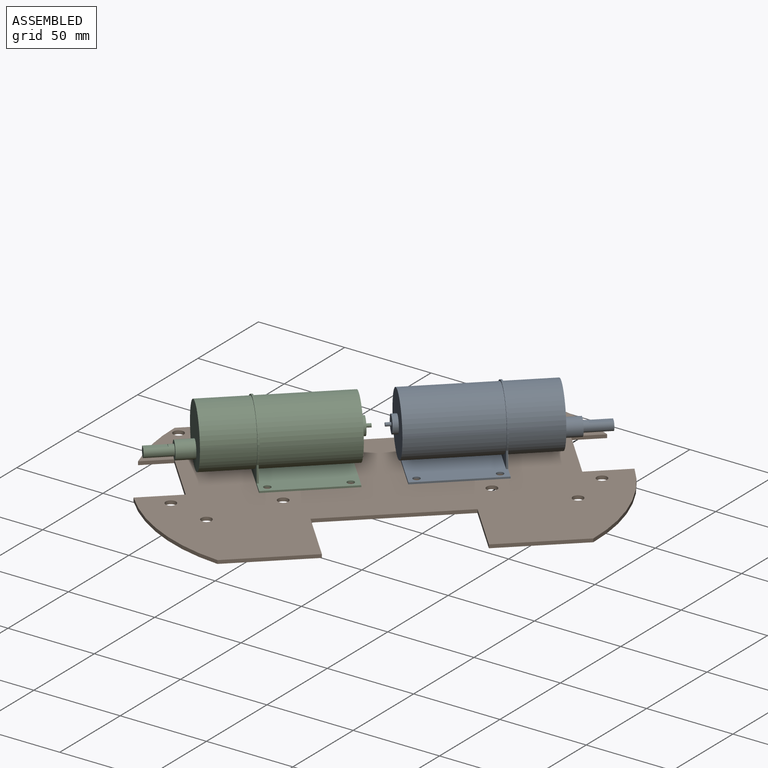
[diagram: assembled view]
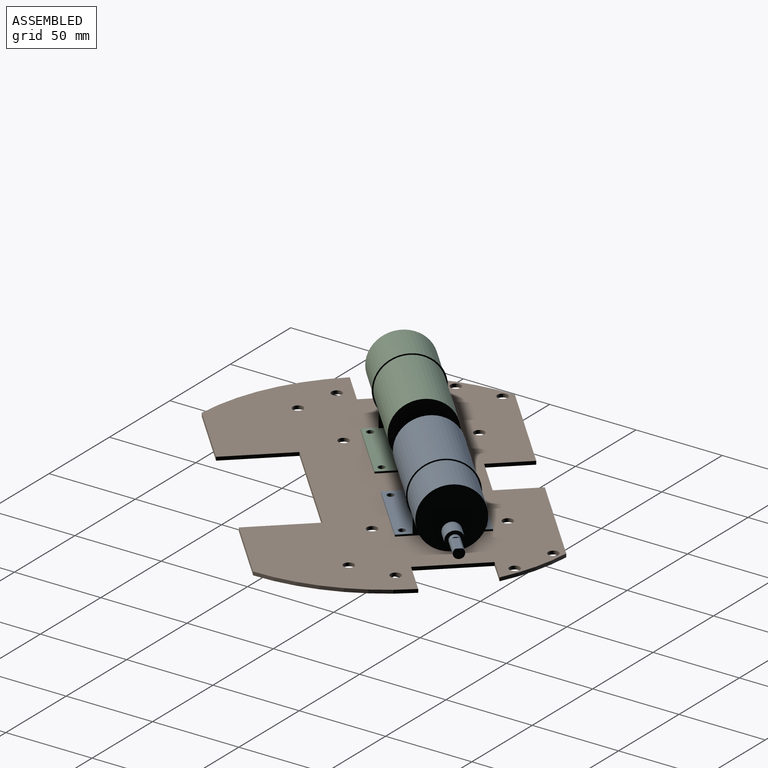
[diagram: assembled view, second angle]
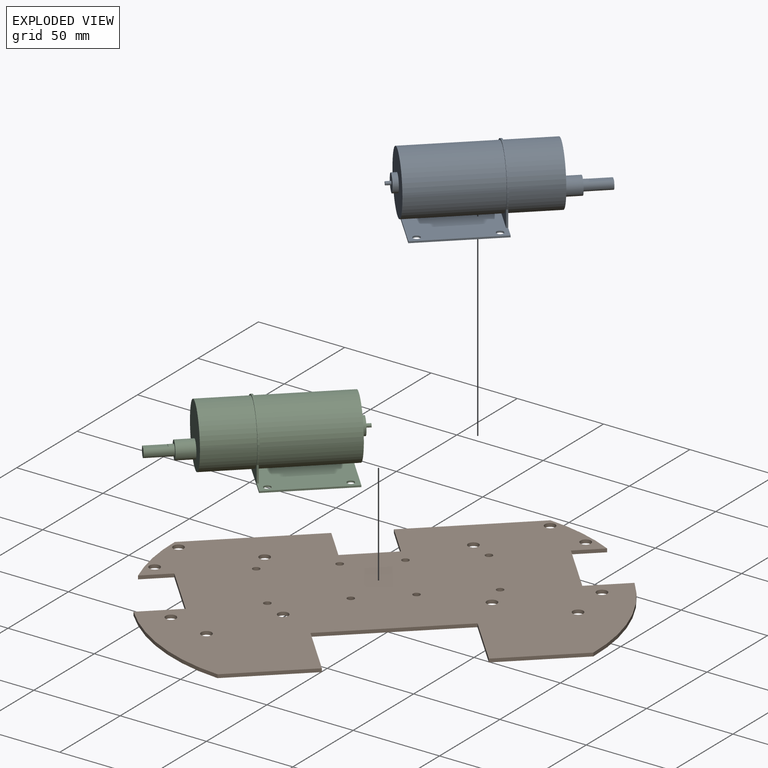
[diagram: exploded view]
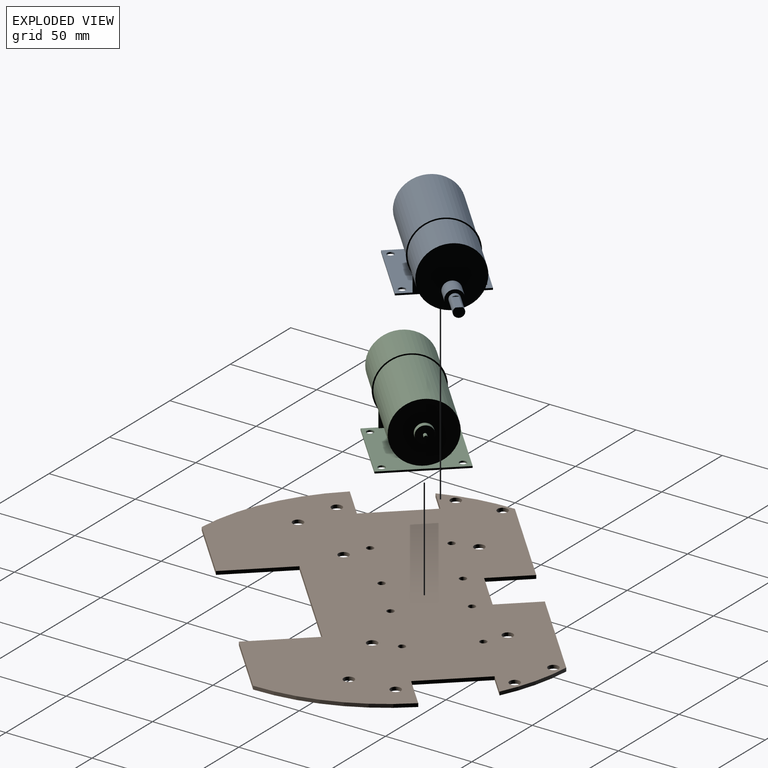
[diagram: exploded view, second angle]
ASSEMBLY  parts=3 mates=7
PART A: 39 faces, bbox 47x109.5x39.3 mm
  f0: plane 2.04x2mm, normal (0,1,0), area 3.1mm2, adj f4,f5
  f1: plane 3.32x0.53mm, normal (0,-1,0), area 1.1mm2, adj f2,f7
  f2: plane 12x3.32mm, normal (0,0,1), area 39.8mm2, adj f1,f3,f6,f7
  f3: plane 6.07x5.55mm, normal (0,-1,0), area 27.1mm2, adj f2,f6,f7
  f4: cylinder r=1mm len=3mm, axis (0,1,0), area 9.4mm2, adj f0,f5,f8
  f5: cylinder r=1mm len=3mm, axis (0,1,0), area 9.4mm2, adj f0,f4,f8
  f6: cylinder r=3mm len=15mm, axis (0,-1,0), area 141.4mm2, adj f2,f3,f7,f9
  f7: cylinder r=3mm len=15mm, axis (0,-1,0), area 99.2mm2, adj f1,f2,f3,f6,f9
  f8: plane 10.19x10mm, normal (0,1,0), area 75.4mm2, adj f4,f5,f10,f11
  f9: plane 10.19x10mm, normal (0,-1,0), area 50.3mm2, adj f6,f7,f12,f13
  f10: cylinder r=5mm len=10mm, axis (0,1,0), area 47.1mm2, adj f8,f11,f14
  f11: cylinder r=5mm len=10mm, axis (0,1,0), area 47.1mm2, adj f8,f10,f14
  f12: cylinder r=5mm len=10mm, axis (0,-1,0), area 157.1mm2, adj f9,f13,f15
  f13: cylinder r=5mm len=10mm, axis (0,-1,0), area 157.1mm2, adj f9,f12,f15
  f14: plane 35.65x35mm, normal (0,1,0), area 883.6mm2, adj f10,f11,f16,f17
  f15: plane 35.65x35mm, normal (0,-1,0), area 883.6mm2, adj f12,f13,f18,f19
  f16: cylinder r=17.5mm len=50mm, axis (0,1,0), area 2748.9mm2, adj f14,f17,f29
  f17: cylinder r=17.5mm len=50mm, axis (0,1,0), area 2748.9mm2, adj f14,f16,f29
  f18: cylinder r=17.5mm len=35mm, axis (0,-1,0), area 1511.9mm2, adj f15,f19,f34
  f19: cylinder r=17.5mm len=35mm, axis (0,-1,0), area 1511.9mm2, adj f15,f18,f34
  f20: cylinder r=18.25mm len=28.65mm, axis (0,1,0), area 39.7mm2, adj f21,f28,f29,f34
  f21: cylinder r=18.25mm len=28.65mm, axis (0,1,0), area 39.7mm2, adj f20,f29,f30,f34
  f22: cylinder r=2mm len=4mm, axis (0,0,1), area 6.3mm2, adj f23,f35,f37
  f23: cylinder r=2mm len=4mm, axis (0,0,1), area 6.3mm2, adj f22,f35,f37
  f24: cylinder r=2mm len=4mm, axis (0,0,1), area 6.3mm2, adj f25,f35,f37
  f25: cylinder r=2mm len=4mm, axis (0,0,1), area 6.3mm2, adj f24,f35,f37
  f26: cylinder r=2mm len=4mm, axis (0,0,1), area 6.3mm2, adj f27,f35,f37
  f27: cylinder r=2mm len=4mm, axis (0,0,1), area 6.3mm2, adj f26,f35,f37
  f28: plane 9.65x1mm, normal (-1,0,0), area 9.7mm2, adj f20,f29,f34,f37
  f29: plane 38.3x36.78mm, normal (0,1,0), area 208.5mm2, adj f16,f17,f20,f21,f28,f30,f37
  f30: plane 9.65x1mm, normal (1,0,0), area 9.7mm2, adj f21,f29,f34,f37
  f31: plane 49x1mm, normal (1,0,0), area 49mm2, adj f32,f34,f35,f37
  f32: plane 47x1mm, normal (0,1,0), area 47mm2, adj f31,f33,f35,f37
  f33: plane 49x1mm, normal (-1,0,0), area 49mm2, adj f32,f34,f35,f37
  f34: plane 47x39.3mm, normal (0,-1,0), area 255.5mm2, adj f18,f19,f20,f21,f28,f30,f31,f33
  f35: plane 49x47mm, normal (0,0,-1), area 2252.7mm2, adj f22,f23,f24,f25,f26,f27,f31,f32
  f36: cylinder r=2mm len=4mm, axis (0,0,1), area 6.3mm2, adj f35,f37,f38
  f37: plane 49x47mm, normal (0,0,1), area 2222.7mm2, adj f22,f23,f24,f25,f26,f27,f28,f29
  f38: cylinder r=2mm len=4mm, axis (0,0,1), area 6.3mm2, adj f35,f36,f37
PART B: 42 faces, bbox 240x150x2 mm
  f0: plane 75x2mm, normal (0,1,0), area 150mm2, adj f1,f30,f40,f41
  f1: cylinder r=108.75mm len=35mm, axis (0,0,-1), area 83.6mm2, adj f0,f2,f40,f41
  f2: plane 17.38x2mm, normal (0,-1,0), area 34.8mm2, adj f1,f3,f40,f41
  f3: plane 40x2mm, normal (-1,0,0), area 80mm2, adj f2,f4,f40,f41
  f4: plane 25x2mm, normal (0,1,0), area 50mm2, adj f3,f5,f40,f41
  f5: cylinder r=108.75mm len=75mm, axis (0,0,-1), area 165.5mm2, adj f4,f6,f40,f41
  f6: plane 50x2mm, normal (0,-1,0), area 100mm2, adj f5,f7,f40,f41
  f7: plane 40x2mm, normal (1,0,0), area 80mm2, adj f6,f8,f40,f41
  f8: plane 80x2mm, normal (0,-1,0), area 160mm2, adj f7,f9,f40,f41
  f9: plane 40x2mm, normal (-1,0,0), area 80mm2, adj f8,f10,f40,f41
  f10: plane 50x2mm, normal (0,-1,0), area 100mm2, adj f9,f11,f40,f41
  f11: cylinder r=108.75mm len=75mm, axis (0,0,-1), area 165.5mm2, adj f10,f12,f40,f41
  f12: plane 25x2mm, normal (0,1,0), area 50mm2, adj f11,f13,f40,f41
  f13: plane 40x2mm, normal (1,0,0), area 80mm2, adj f12,f14,f40,f41
  f14: plane 17.38x2mm, normal (0,-1,0), area 34.8mm2, adj f13,f15,f40,f41
  f15: cylinder r=108.75mm len=35mm, axis (0,0,-1), area 83.6mm2, adj f14,f16,f40,f41
  f16: plane 75x2mm, normal (0,1,0), area 150mm2, adj f15,f17,f40,f41
  f17: plane 25x2mm, normal (-1,0,0), area 50mm2, adj f16,f18,f40,f41
  f18: plane 30x2mm, normal (0,1,0), area 60mm2, adj f17,f30,f40,f41
  f19: cylinder r=3mm len=6mm, axis (0,0,-1), area 37.7mm2, adj f40,f41
  f20: cylinder r=3mm len=6mm, axis (0,0,-1), area 37.7mm2, adj f40,f41
  f21: cylinder r=3mm len=6mm, axis (0,0,-1), area 37.7mm2, adj f40,f41
  f22: cylinder r=3mm len=6mm, axis (0,0,-1), area 37.7mm2, adj f40,f41
  f23: cylinder r=2mm len=4mm, axis (0,0,-1), area 25.1mm2, adj f40,f41
  f24: cylinder r=2mm len=4mm, axis (0,0,-1), area 25.1mm2, adj f40,f41
  f25: cylinder r=3mm len=6mm, axis (0,0,-1), area 37.7mm2, adj f40,f41
  f26: cylinder r=2mm len=4mm, axis (0,0,-1), area 25.1mm2, adj f40,f41
  f27: cylinder r=2mm len=4mm, axis (0,0,-1), area 25.1mm2, adj f40,f41
  f28: cylinder r=3mm len=6mm, axis (0,0,-1), area 37.7mm2, adj f40,f41
  f29: cylinder r=3mm len=6mm, axis (0,0,-1), area 37.7mm2, adj f40,f41
  f30: plane 25x2mm, normal (1,0,0), area 50mm2, adj f0,f18,f40,f41
  f31: cylinder r=2mm len=4mm, axis (0,0,-1), area 25.1mm2, adj f40,f41
  f32: cylinder r=2mm len=4mm, axis (0,0,-1), area 25.1mm2, adj f40,f41
  f33: cylinder r=3mm len=6mm, axis (0,0,-1), area 37.7mm2, adj f40,f41
  f34: cylinder r=3mm len=6mm, axis (0,0,-1), area 37.7mm2, adj f40,f41
  f35: cylinder r=3mm len=6mm, axis (0,0,-1), area 37.7mm2, adj f40,f41
  f36: cylinder r=3mm len=6mm, axis (0,0,-1), area 37.7mm2, adj f40,f41
  f37: cylinder r=2mm len=4mm, axis (0,0,-1), area 25.1mm2, adj f40,f41
  f38: cylinder r=2mm len=4mm, axis (0,0,-1), area 25.1mm2, adj f40,f41
  f39: cylinder r=3mm len=6mm, axis (0,0,-1), area 37.7mm2, adj f40,f41
  f40: plane 240x150mm, normal (0,0,1), area 26998.4mm2, adj f0,f1,f2,f3,f4,f5,f6,f7
  f41: plane 240x150mm, normal (0,0,-1), area 26998.4mm2, adj f0,f1,f2,f3,f4,f5,f6,f7
PART C: same geometry as A
PLACE A rot(axis=(0,0,1),132.8deg) t=(65.17,124.5,67.56)mm
PLACE B rot(axis=(0,0,1),42.8deg) t=(54.51,47.31,44.51)mm
PLACE C rot(axis=(0,0,-1),47.2deg) t=(-23.27,42.66,67.56)mm
MATE cylindrical B.f24 <-> A.f26  axis (0,0,-1) through (48.62,135.76,45.51)mm
MATE cylindrical B.f32 <-> C.f26  axis (0,0,-1) through (-6.73,31.4,46.51)mm
MATE cylindrical B.f37 <-> C.f22  axis (0,0,-1) through (22.63,58.57,46.51)mm
MATE cylindrical B.f31 <-> C.f36  axis (0,0,-1) through (-33.21,60.03,46.51)mm
MATE cylindrical B.f23 <-> A.f24  axis (0,0,-1) through (45.75,79.96,45.51)mm
MATE planar B.f26 <-> A.f36  axis (0,0,1) through (75.11,107.13,46.51)mm
MATE planar C.f24 <-> B.f38  axis (0,0,1) through (-3.86,87.19,46.51)mm
